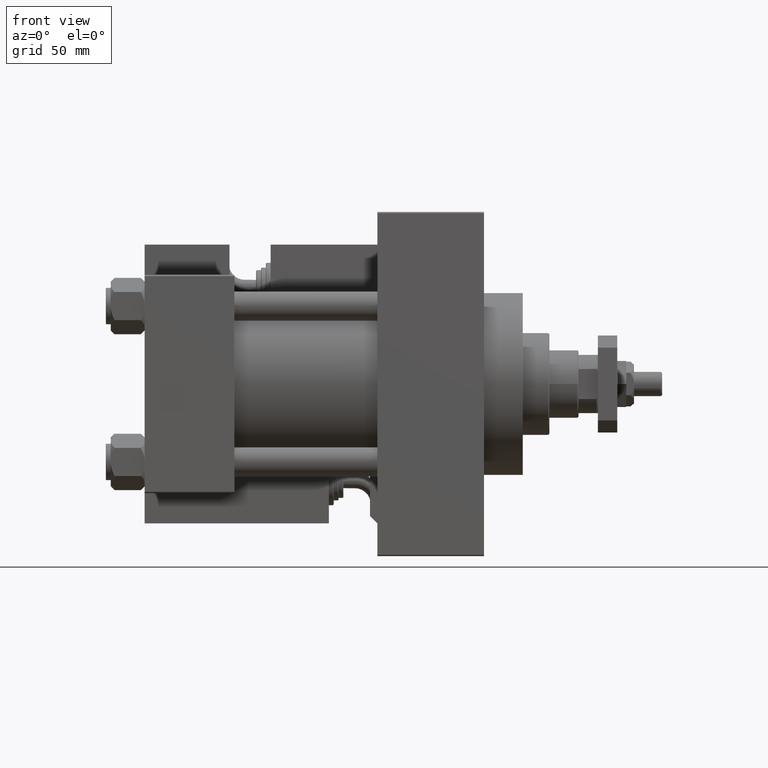
[diagram: clean part render]
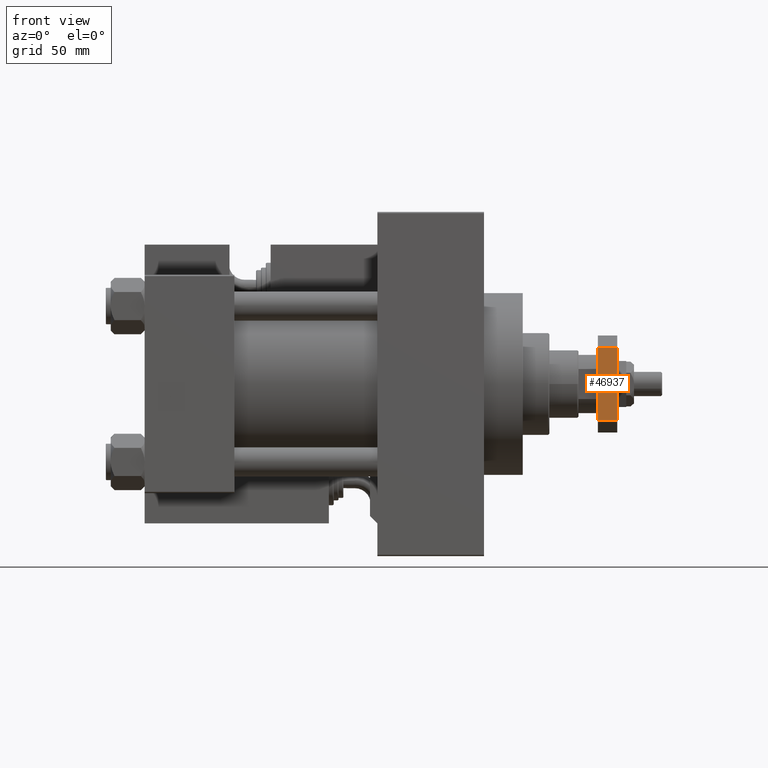
[diagram: same view with one face highlighted and labeled with its STEP entity id]
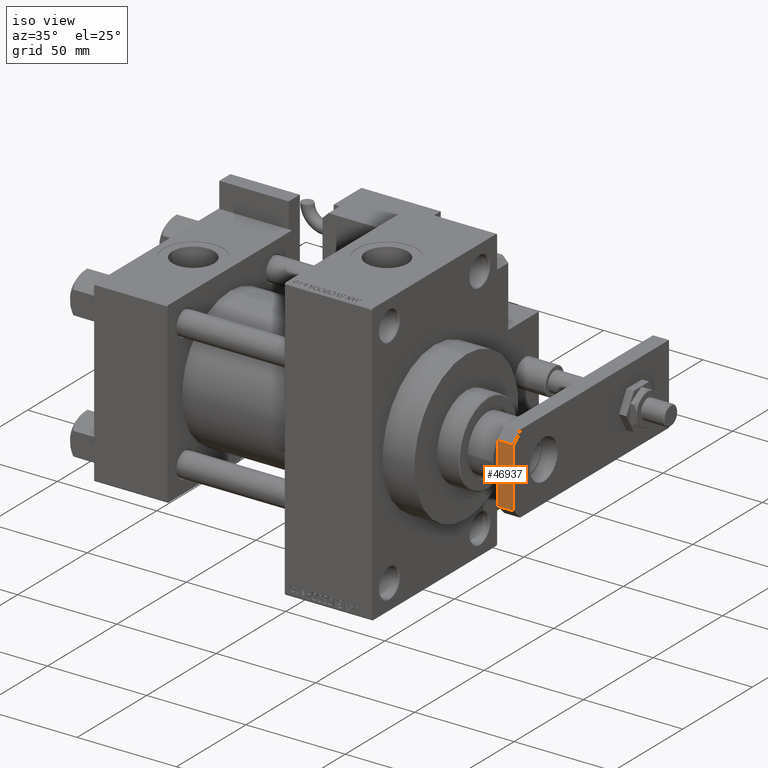
[diagram: same view with one face highlighted and labeled with its STEP entity id]
A machine part, front view. The second image highlights one B-rep face of the part: STEP entity #46937.
A second angle (iso view) of the same face is appended — the face is thin or edge-on in the first view.
In plain terms, the highlighted planar face has unit normal (0, 1, 0).
Its self-contained STEP definition (entity closure, byte-faithful):
#3030 = DIRECTION ( 'NONE',  ( 1.000000000000000000, 0.000000000000000000, 0.000000000000000000 ) ) ;
#3114 = LINE ( 'NONE', #15607, #40582 ) ;
#3487 = ORIENTED_EDGE ( 'NONE', *, *, #43043, .F. ) ;
#6229 = EDGE_CURVE ( 'NONE', #8842, #16441, #31839, .T. ) ;
#8842 = VERTEX_POINT ( 'NONE', #33867 ) ;
#11452 = DIRECTION ( 'NONE',  ( 0.000000000000000000, 0.000000000000000000, -1.000000000000000000 ) ) ;
#13581 = PLANE ( 'NONE',  #19780 ) ;
#13692 = CARTESIAN_POINT ( 'NONE',  ( -20.00000000000001421, 0.000000000000000000, 8.000000000000000000 ) ) ;
#15607 = CARTESIAN_POINT ( 'NONE',  ( -15.00000000000001066, 0.000000000000000000, 8.000000000000000000 ) ) ;
#16377 = EDGE_CURVE ( 'NONE', #35375, #8842, #3114, .T. ) ;
#16441 = VERTEX_POINT ( 'NONE', #21177 ) ;
#16927 = CARTESIAN_POINT ( 'NONE',  ( -20.00000000000001421, 0.000000000000000000, 8.000000000000000000 ) ) ;
#17554 = VECTOR ( 'NONE', #3030, 1000.000000000000000 ) ;
#18224 = ORIENTED_EDGE ( 'NONE', *, *, #37352, .T. ) ;
#19780 = AXIS2_PLACEMENT_3D ( 'NONE', #16927, #29735, #42533 ) ;
#21177 = CARTESIAN_POINT ( 'NONE',  ( 15.00000000000001066, 0.000000000000000000, 0.000000000000000000 ) ) ;
#22123 = CARTESIAN_POINT ( 'NONE',  ( 15.00000000000001066, 0.000000000000000000, 8.000000000000000000 ) ) ;
#23206 = DIRECTION ( 'NONE',  ( 1.000000000000000000, 0.000000000000000000, 0.000000000000000000 ) ) ;
#24419 = VECTOR ( 'NONE', #40918, 1000.000000000000000 ) ;
#29735 = DIRECTION ( 'NONE',  ( 0.000000000000000000, 1.000000000000000000, 0.000000000000000000 ) ) ;
#31839 = LINE ( 'NONE', #48276, #43855 ) ;
#33315 = ORIENTED_EDGE ( 'NONE', *, *, #6229, .T. ) ;
#33867 = CARTESIAN_POINT ( 'NONE',  ( -15.00000000000001066, 0.000000000000000000, 0.000000000000000000 ) ) ;
#35375 = VERTEX_POINT ( 'NONE', #46219 ) ;
#36067 = VERTEX_POINT ( 'NONE', #22123 ) ;
#37352 = EDGE_CURVE ( 'NONE', #16441, #36067, #42022, .T. ) ;
#39266 = LINE ( 'NONE', #13692, #17554 ) ;
#40582 = VECTOR ( 'NONE', #11452, 1000.000000000000000 ) ;
#40918 = DIRECTION ( 'NONE',  ( 0.000000000000000000, 0.000000000000000000, 1.000000000000000000 ) ) ;
#41478 = CARTESIAN_POINT ( 'NONE',  ( 15.00000000000001066, 0.000000000000000000, 8.000000000000000000 ) ) ;
#42022 = LINE ( 'NONE', #41478, #24419 ) ;
#42358 = ORIENTED_EDGE ( 'NONE', *, *, #16377, .T. ) ;
#42533 = DIRECTION ( 'NONE',  ( 0.000000000000000000, -0.000000000000000000, 1.000000000000000000 ) ) ;
#43043 = EDGE_CURVE ( 'NONE', #35375, #36067, #39266, .T. ) ;
#43855 = VECTOR ( 'NONE', #23206, 1000.000000000000000 ) ;
#44259 = FACE_OUTER_BOUND ( 'NONE', #46998, .T. ) ;
#46219 = CARTESIAN_POINT ( 'NONE',  ( -15.00000000000001066, 0.000000000000000000, 8.000000000000000000 ) ) ;
#46937 = ADVANCED_FACE ( 'NONE', ( #44259 ), #13581, .F. ) ;
#46998 = EDGE_LOOP ( 'NONE', ( #3487, #42358, #33315, #18224 ) ) ;
#48276 = CARTESIAN_POINT ( 'NONE',  ( -20.00000000000001421, 0.000000000000000000, 0.000000000000000000 ) ) ;